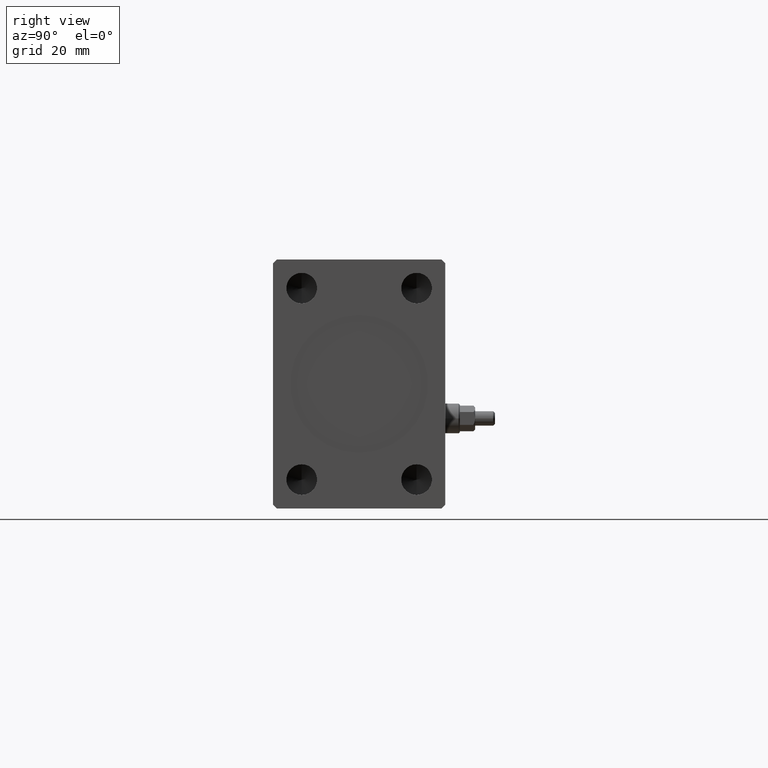
[diagram: clean part render]
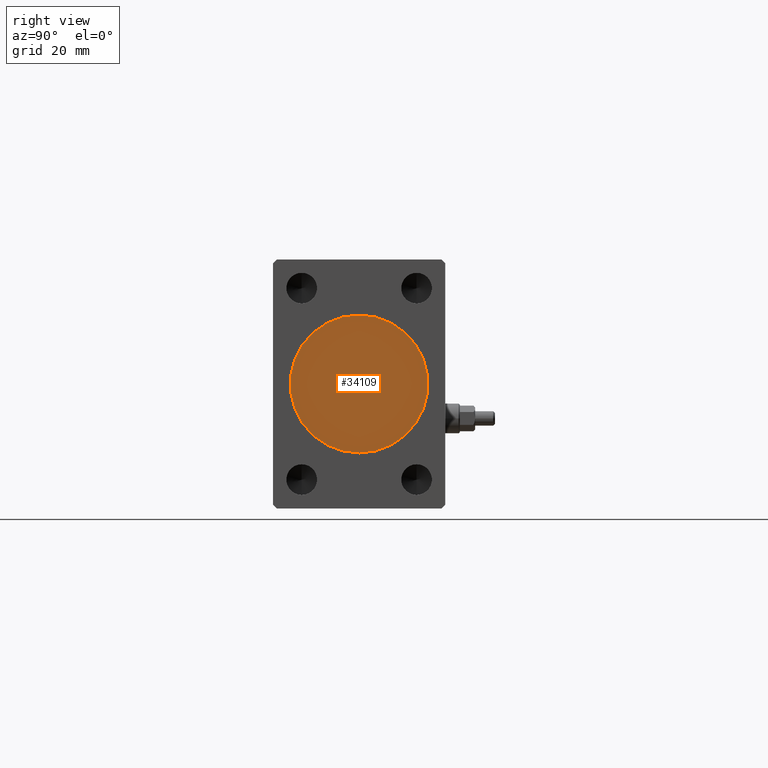
[diagram: same view with one face highlighted and labeled with its STEP entity id]
A machine part, right view. The second image highlights one B-rep face of the part: STEP entity #34109.
In plain terms, the highlighted planar face has unit normal (1, 0, 0).
Its self-contained STEP definition (entity closure, byte-faithful):
#2275 = EDGE_CURVE ( 'NONE', #34662, #19366, #11652, .T. ) ;
#6768 = DIRECTION ( 'NONE',  ( 1.000000000000000000, 0.000000000000000000, 0.000000000000000000 ) ) ;
#8002 = AXIS2_PLACEMENT_3D ( 'NONE', #38279, #6768, #9974 ) ;
#8333 = AXIS2_PLACEMENT_3D ( 'NONE', #19053, #26366, #40291 ) ;
#9974 = DIRECTION ( 'NONE',  ( 0.000000000000000000, 0.000000000000000000, -1.000000000000000000 ) ) ;
#11652 = CIRCLE ( 'NONE', #8002, 18.00000000000000000 ) ;
#11867 = DIRECTION ( 'NONE',  ( 1.000000000000000000, 0.000000000000000000, 0.000000000000000000 ) ) ;
#13236 = AXIS2_PLACEMENT_3D ( 'NONE', #33576, #11867, #26259 ) ;
#15975 = FACE_OUTER_BOUND ( 'NONE', #37860, .T. ) ;
#16348 = CARTESIAN_POINT ( 'NONE',  ( 162.8000000000000114, 2.204364238465235428E-15, 18.00000000000000000 ) ) ;
#19053 = CARTESIAN_POINT ( 'NONE',  ( 162.8000000000000114, 0.000000000000000000, 0.000000000000000000 ) ) ;
#19366 = VERTEX_POINT ( 'NONE', #16348 ) ;
#20497 = ORIENTED_EDGE ( 'NONE', *, *, #43349, .T. ) ;
#23643 = ORIENTED_EDGE ( 'NONE', *, *, #2275, .T. ) ;
#25110 = CIRCLE ( 'NONE', #8333, 18.00000000000000000 ) ;
#26259 = DIRECTION ( 'NONE',  ( 0.000000000000000000, 0.000000000000000000, -1.000000000000000000 ) ) ;
#26366 = DIRECTION ( 'NONE',  ( 1.000000000000000000, 0.000000000000000000, 0.000000000000000000 ) ) ;
#33576 = CARTESIAN_POINT ( 'NONE',  ( 162.8000000000000114, 0.000000000000000000, 0.000000000000000000 ) ) ;
#34109 = ADVANCED_FACE ( 'NONE', ( #15975 ), #36761, .T. ) ;
#34662 = VERTEX_POINT ( 'NONE', #41150 ) ;
#36761 = PLANE ( 'NONE',  #13236 ) ;
#37860 = EDGE_LOOP ( 'NONE', ( #23643, #20497 ) ) ;
#38279 = CARTESIAN_POINT ( 'NONE',  ( 162.8000000000000114, 0.000000000000000000, 0.000000000000000000 ) ) ;
#40291 = DIRECTION ( 'NONE',  ( 0.000000000000000000, 0.000000000000000000, -1.000000000000000000 ) ) ;
#41150 = CARTESIAN_POINT ( 'NONE',  ( 162.8000000000000114, 0.000000000000000000, -18.00000000000000000 ) ) ;
#43349 = EDGE_CURVE ( 'NONE', #19366, #34662, #25110, .T. ) ;